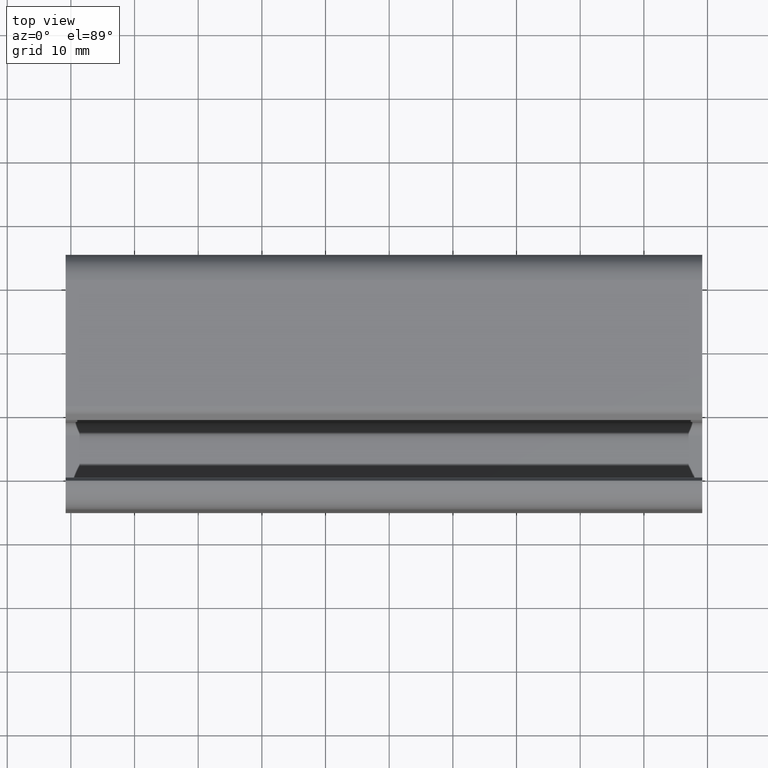
[diagram: clean part render]
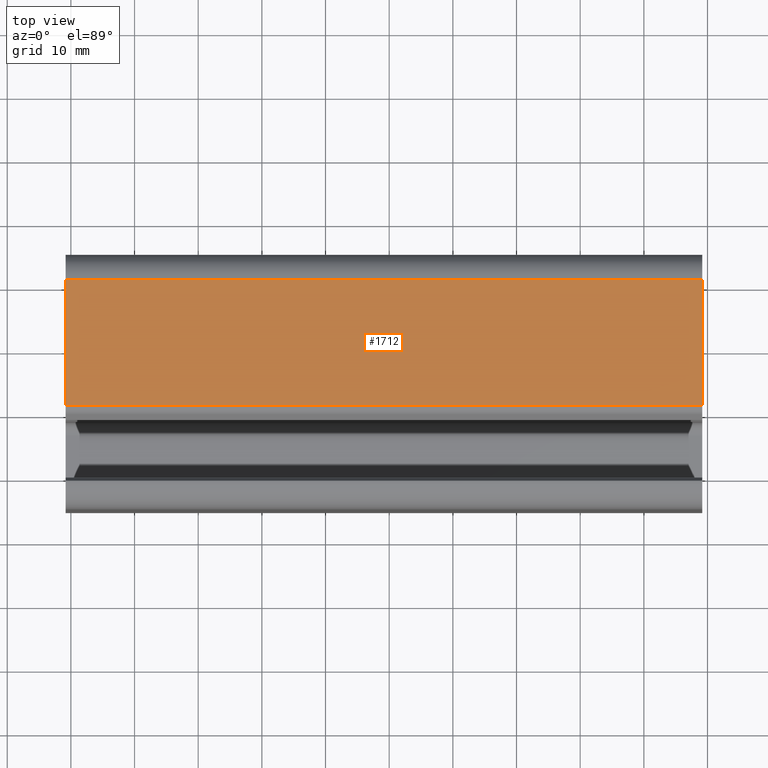
[diagram: same view with one face highlighted and labeled with its STEP entity id]
A machine part, top view. The second image highlights one B-rep face of the part: STEP entity #1712.
In plain terms, the highlighted planar face has unit normal (0, 0, -1).
Its self-contained STEP definition (entity closure, byte-faithful):
#221 = PLANE ( 'NONE',  #498 ) ;
#260 = LINE ( 'NONE', #2191, #2898 ) ;
#274 = CARTESIAN_POINT ( 'NONE',  ( 59.18367346938774887, 70.89795918367352101, 19.99999999999998934 ) ) ;
#498 = AXIS2_PLACEMENT_3D ( 'NONE', #813, #2521, #1469 ) ;
#540 = ORIENTED_EDGE ( 'NONE', *, *, #2970, .F. ) ;
#554 = ORIENTED_EDGE ( 'NONE', *, *, #3823, .F. ) ;
#657 = CARTESIAN_POINT ( 'NONE',  ( -40.81632653061225824, 70.89795918367352101, 19.99999999999998934 ) ) ;
#668 = CARTESIAN_POINT ( 'NONE',  ( 59.18367346938774887, 70.89795918367352101, 19.99999999999998934 ) ) ;
#813 = CARTESIAN_POINT ( 'NONE',  ( 59.18367346938774887, 70.89795918367352101, 19.99999999999998934 ) ) ;
#1207 = VERTEX_POINT ( 'NONE', #3194 ) ;
#1305 = EDGE_CURVE ( 'NONE', #1207, #1310, #4098, .T. ) ;
#1310 = VERTEX_POINT ( 'NONE', #4302 ) ;
#1469 = DIRECTION ( 'NONE',  ( -1.000000000000000000, 0.0000000000000000000, -0.0000000000000000000 ) ) ;
#1712 = ADVANCED_FACE ( 'NONE', ( #3470 ), #221, .F. ) ;
#1841 = VECTOR ( 'NONE', #2210, 1000.000000000000000 ) ;
#1996 = VERTEX_POINT ( 'NONE', #668 ) ;
#2191 = CARTESIAN_POINT ( 'NONE',  ( 59.18367346938774887, 51.13001028935025261, 20.00000000000000000 ) ) ;
#2210 = DIRECTION ( 'NONE',  ( 0.0000000000000000000, -1.000000000000000000, 0.0000000000000000000 ) ) ;
#2263 = ORIENTED_EDGE ( 'NONE', *, *, #1305, .T. ) ;
#2521 = DIRECTION ( 'NONE',  ( 0.0000000000000000000, 0.0000000000000000000, -1.000000000000000000 ) ) ;
#2533 = DIRECTION ( 'NONE',  ( -1.000000000000000000, -0.0000000000000000000, -0.0000000000000000000 ) ) ;
#2799 = LINE ( 'NONE', #274, #3151 ) ;
#2833 = VERTEX_POINT ( 'NONE', #4087 ) ;
#2898 = VECTOR ( 'NONE', #2533, 1000.000000000000000 ) ;
#2924 = CARTESIAN_POINT ( 'NONE',  ( 59.18367346938774887, 70.89795918367352101, 19.99999999999998934 ) ) ;
#2935 = DIRECTION ( 'NONE',  ( -1.000000000000000000, -0.0000000000000000000, -0.0000000000000000000 ) ) ;
#2970 = EDGE_CURVE ( 'NONE', #2833, #1310, #260, .T. ) ;
#3089 = EDGE_CURVE ( 'NONE', #1996, #1207, #2799, .T. ) ;
#3107 = ORIENTED_EDGE ( 'NONE', *, *, #3089, .T. ) ;
#3113 = VECTOR ( 'NONE', #4270, 1000.000000000000000 ) ;
#3151 = VECTOR ( 'NONE', #2935, 1000.000000000000000 ) ;
#3193 = LINE ( 'NONE', #2924, #1841 ) ;
#3194 = CARTESIAN_POINT ( 'NONE',  ( -40.81632653061225824, 70.89795918367352101, 19.99999999999998934 ) ) ;
#3470 = FACE_OUTER_BOUND ( 'NONE', #3851, .T. ) ;
#3823 = EDGE_CURVE ( 'NONE', #1996, #2833, #3193, .T. ) ;
#3851 = EDGE_LOOP ( 'NONE', ( #2263, #540, #554, #3107 ) ) ;
#4087 = CARTESIAN_POINT ( 'NONE',  ( 59.18367346938774887, 51.13001028935025261, 20.00000000000000000 ) ) ;
#4098 = LINE ( 'NONE', #657, #3113 ) ;
#4270 = DIRECTION ( 'NONE',  ( 0.0000000000000000000, -1.000000000000000000, 0.0000000000000000000 ) ) ;
#4302 = CARTESIAN_POINT ( 'NONE',  ( -40.81632653061225824, 51.13001028935025261, 20.00000000000000000 ) ) ;